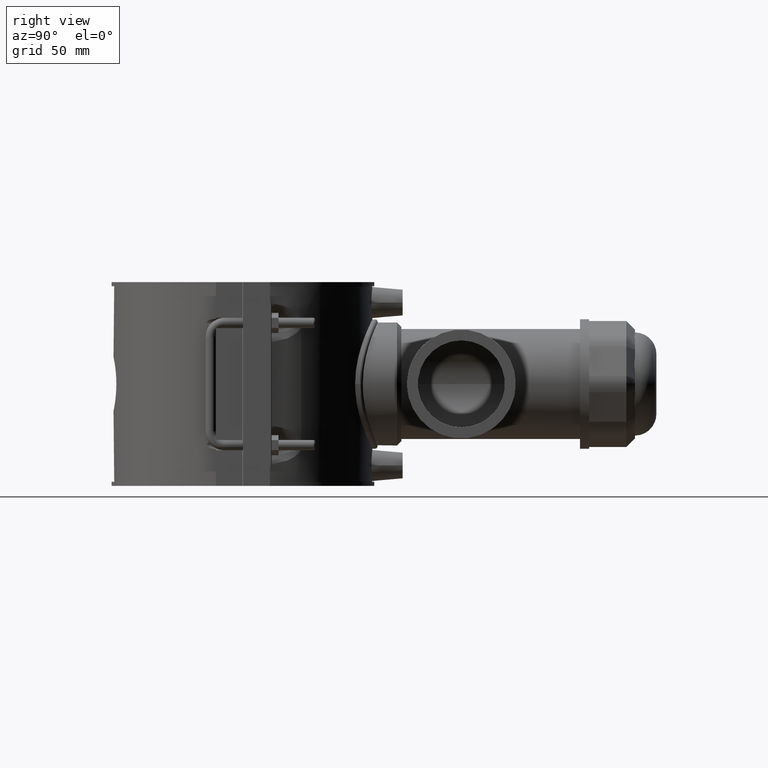
[diagram: clean part render]
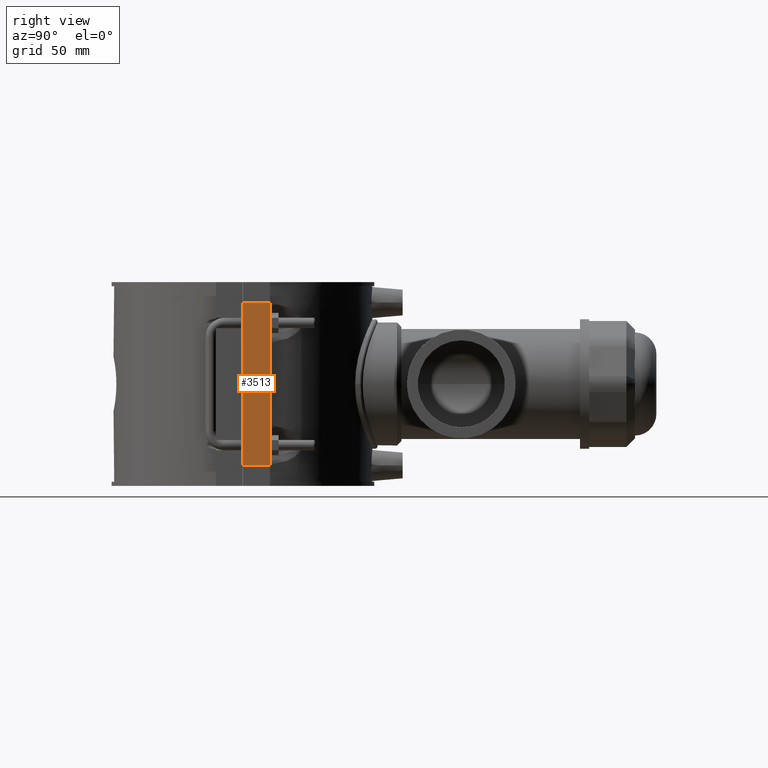
[diagram: same view with one face highlighted and labeled with its STEP entity id]
A machine part, right view. The second image highlights one B-rep face of the part: STEP entity #3513.
In plain terms, the highlighted planar face has unit normal (1, 0, 0).
Its self-contained STEP definition (entity closure, byte-faithful):
#198=LINE('',#6567,#497);
#214=LINE('',#6638,#513);
#217=LINE('',#6644,#516);
#218=LINE('',#6645,#517);
#497=VECTOR('',#4424,94.4);
#513=VECTOR('',#4450,16.0750000000001);
#516=VECTOR('',#4455,16.0750000000001);
#517=VECTOR('',#4456,94.4);
#921=FACE_OUTER_BOUND('',#1157,.T.);
#1157=EDGE_LOOP('',(#2739,#2740,#2741,#2742));
#1622=VERTEX_POINT('',#6564);
#1623=VERTEX_POINT('',#6566);
#1641=VERTEX_POINT('',#6637);
#1643=VERTEX_POINT('',#6643);
#2028=EDGE_CURVE('',#1622,#1623,#198,.T.);
#2051=EDGE_CURVE('',#1623,#1641,#214,.T.);
#2054=EDGE_CURVE('',#1643,#1622,#217,.T.);
#2055=EDGE_CURVE('',#1641,#1643,#218,.T.);
#2739=ORIENTED_EDGE('',*,*,#2028,.F.);
#2740=ORIENTED_EDGE('',*,*,#2054,.F.);
#2741=ORIENTED_EDGE('',*,*,#2055,.F.);
#2742=ORIENTED_EDGE('',*,*,#2051,.F.);
#3348=PLANE('',#3790);
#3513=ADVANCED_FACE('',(#921),#3348,.T.);
#3790=AXIS2_PLACEMENT_3D('',#6642,#4453,#4454);
#4424=DIRECTION('',(0.,0.,-1.));
#4450=DIRECTION('',(0.,-1.,0.));
#4453=DIRECTION('center_axis',(1.,0.,0.));
#4454=DIRECTION('ref_axis',(0.,1.,0.));
#4455=DIRECTION('',(0.,1.,0.));
#4456=DIRECTION('',(0.,0.,1.));
#6564=CARTESIAN_POINT('',(82.,16.1250000000001,47.2));
#6566=CARTESIAN_POINT('',(82.,16.1250000000001,-47.2));
#6567=CARTESIAN_POINT('',(82.,16.1250000000001,0.));
#6637=CARTESIAN_POINT('',(82.,0.0500000000000078,-47.2));
#6638=CARTESIAN_POINT('',(82.,0.0500000000000078,-47.2));
#6642=CARTESIAN_POINT('Origin',(82.,0.0500000000000081,0.));
#6643=CARTESIAN_POINT('',(82.,0.0500000000000078,47.2));
#6644=CARTESIAN_POINT('',(82.,0.0500000000000078,47.2));
#6645=CARTESIAN_POINT('',(82.,0.0500000000000081,0.));